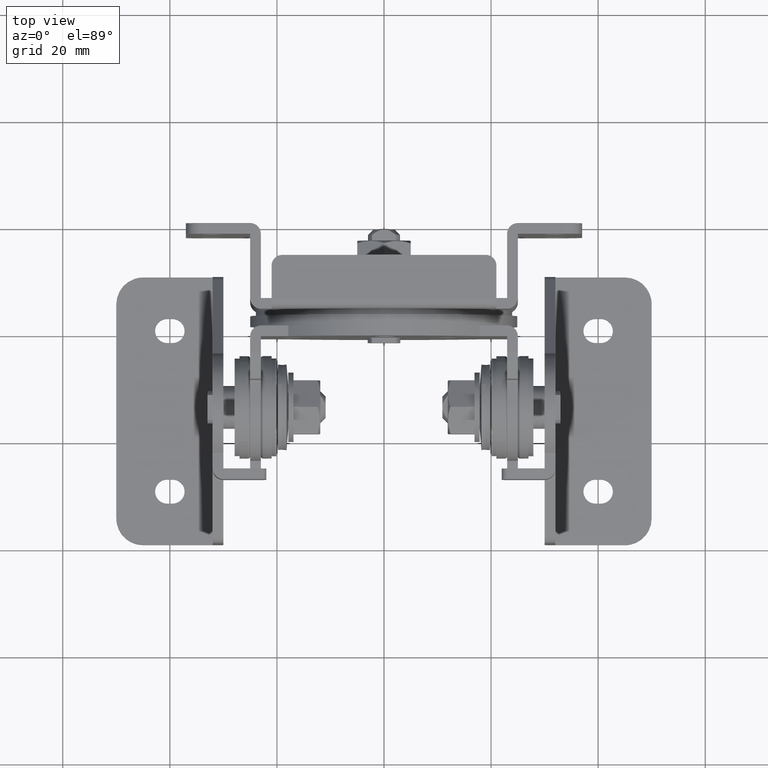
[diagram: clean part render]
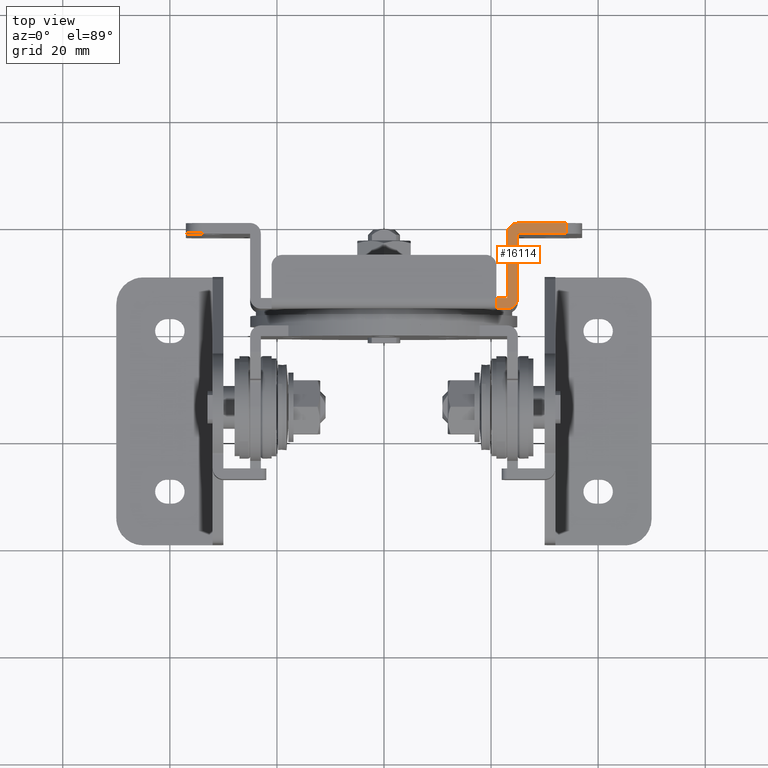
[diagram: same view with one face highlighted and labeled with its STEP entity id]
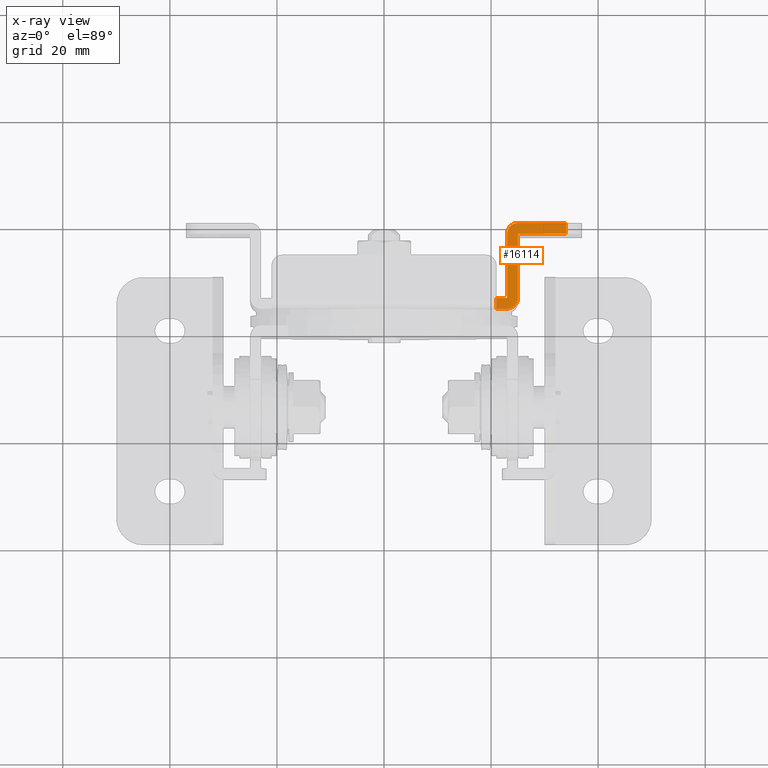
[diagram: x-ray of the same camera — body ghosted, the highlighted face saturated]
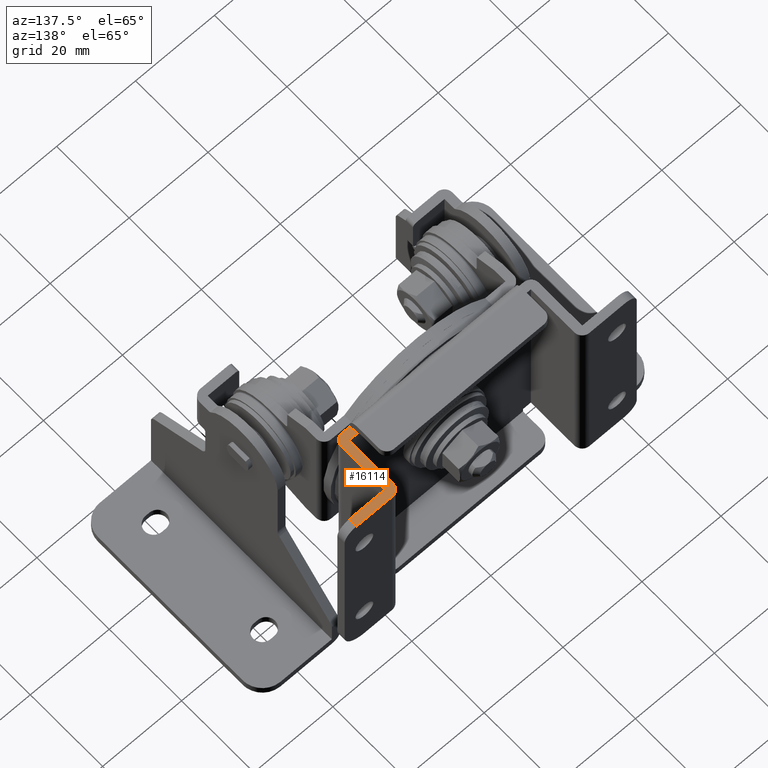
[diagram: same view with one face highlighted and labeled with its STEP entity id]
A machine part, top view. The second image highlights one B-rep face of the part: STEP entity #16114.
The next image is the same camera in x-ray: the body ghosted, the highlighted face saturated — about 0% of this face is hidden behind the body in this view.
A second angle (auxiliary view) of the same face is appended — the face is thin or edge-on in the first view.
In plain terms, the highlighted face is a freeform B-spline surface patch.
Its self-contained STEP definition (entity closure, byte-faithful):
#15058=CARTESIAN_POINT('',(21.0,-16.0,25.0));
#15059=VERTEX_POINT('',#15058);
#15065=CARTESIAN_POINT('',(21.0,-14.0,24.999999999999350));
#15066=VERTEX_POINT('',#15065);
#15067=CARTESIAN_POINT('',(21.0,-14.0,24.999999999999350));
#15068=CARTESIAN_POINT('',(21.0,-16.0,25.0));
#15069=QUASI_UNIFORM_CURVE('',1,(#15067,#15068),.UNSPECIFIED.,.F.,.U.);
#15070=EDGE_CURVE('',#15066,#15059,#15069,.T.);
#15293=CARTESIAN_POINT('',(23.0,-16.0,25.0));
#15294=VERTEX_POINT('',#15293);
#15295=CARTESIAN_POINT('',(25.0,-14.0,25.0));
#15296=VERTEX_POINT('',#15295);
#15297=CARTESIAN_POINT('',(23.0,-16.0,25.0));
#15298=CARTESIAN_POINT('',(25.0,-15.999999999999998,25.0));
#15299=CARTESIAN_POINT('',(25.0,-14.0,25.0));
#15307=(BOUNDED_CURVE()B_SPLINE_CURVE(2,(#15297,#15298,#15299),.UNSPECIFIED.,.F.,.U.)CURVE()GEOMETRIC_REPRESENTATION_ITEM()QUASI_UNIFORM_CURVE()RATIONAL_B_SPLINE_CURVE((1.0,0.707106781186548,1.0))REPRESENTATION_ITEM(''));
#15308=EDGE_CURVE('',#15294,#15296,#15307,.T.);
#15354=CARTESIAN_POINT('',(25.0,5.684342E-014,25.0));
#15355=VERTEX_POINT('',#15354);
#15356=CARTESIAN_POINT('',(23.0,-1.999999999999940,25.0));
#15357=VERTEX_POINT('',#15356);
#15358=CARTESIAN_POINT('',(25.0,5.984796E-014,25.0));
#15359=CARTESIAN_POINT('',(22.999999999999993,5.984796E-014,25.0));
#15360=CARTESIAN_POINT('',(23.0,-1.999999999999940,25.0));
#15368=(BOUNDED_CURVE()B_SPLINE_CURVE(2,(#15358,#15359,#15360),.UNSPECIFIED.,.F.,.U.)CURVE()GEOMETRIC_REPRESENTATION_ITEM()QUASI_UNIFORM_CURVE()RATIONAL_B_SPLINE_CURVE((1.0,0.707106781186548,1.0))REPRESENTATION_ITEM(''));
#15369=EDGE_CURVE('',#15355,#15357,#15368,.T.);
#15854=CARTESIAN_POINT('',(34.0,5.684342E-014,25.0));
#15855=VERTEX_POINT('',#15854);
#15871=CARTESIAN_POINT('',(34.0,-2.0,25.0));
#15872=VERTEX_POINT('',#15871);
#15873=CARTESIAN_POINT('',(34.0,-2.0,25.0));
#15874=CARTESIAN_POINT('',(34.0,5.684342E-014,25.0));
#15875=QUASI_UNIFORM_CURVE('',1,(#15873,#15874),.UNSPECIFIED.,.F.,.U.);
#15876=EDGE_CURVE('',#15872,#15855,#15875,.T.);
#16069=CARTESIAN_POINT('',(20.350650025196519,-16.799199968988901,25.0));
#16070=CARTESIAN_POINT('',(34.649350323490651,-16.799199968988901,25.0));
#16071=CARTESIAN_POINT('',(20.350650025196519,0.799200398142396,25.0));
#16072=CARTESIAN_POINT('',(34.649350323490651,0.799200398142396,25.0));
#16073=B_SPLINE_SURFACE_WITH_KNOTS('',1,1,((#16069,#16071),(#16070,#16072)),.UNSPECIFIED.,.F.,.F.,.U.,(2,2),(2,2),(0.0,14.298700298294129),(0.0,17.598400367131291),.UNSPECIFIED.);
#16074=CARTESIAN_POINT('',(23.0,-14.0,25.0));
#16075=VERTEX_POINT('',#16074);
#16076=CARTESIAN_POINT('',(21.0,-14.0,24.999999999999350));
#16077=CARTESIAN_POINT('',(23.0,-14.0,25.0));
#16078=QUASI_UNIFORM_CURVE('',1,(#16076,#16077),.UNSPECIFIED.,.F.,.U.);
#16079=EDGE_CURVE('',#15066,#16075,#16078,.T.);
#16080=ORIENTED_EDGE('',*,*,#16079,.F.);
#16081=ORIENTED_EDGE('',*,*,#15070,.T.);
#16082=CARTESIAN_POINT('',(23.0,-16.0,25.0));
#16083=CARTESIAN_POINT('',(21.0,-16.0,25.0));
#16084=QUASI_UNIFORM_CURVE('',1,(#16082,#16083),.UNSPECIFIED.,.F.,.U.);
#16085=EDGE_CURVE('',#15294,#15059,#16084,.T.);
#16086=ORIENTED_EDGE('',*,*,#16085,.F.);
#16087=ORIENTED_EDGE('',*,*,#15308,.T.);
#16088=CARTESIAN_POINT('',(25.0,-2.0,25.0));
#16089=VERTEX_POINT('',#16088);
#16090=CARTESIAN_POINT('',(25.0,-2.0,25.0));
#16091=CARTESIAN_POINT('',(25.0,-14.0,25.0));
#16092=QUASI_UNIFORM_CURVE('',1,(#16090,#16091),.UNSPECIFIED.,.F.,.U.);
#16093=EDGE_CURVE('',#16089,#15296,#16092,.T.);
#16094=ORIENTED_EDGE('',*,*,#16093,.F.);
#16095=CARTESIAN_POINT('',(34.0,-2.0,25.0));
#16096=CARTESIAN_POINT('',(25.0,-2.0,25.0));
#16097=QUASI_UNIFORM_CURVE('',1,(#16095,#16096),.UNSPECIFIED.,.F.,.U.);
#16098=EDGE_CURVE('',#15872,#16089,#16097,.T.);
#16099=ORIENTED_EDGE('',*,*,#16098,.F.);
#16100=ORIENTED_EDGE('',*,*,#15876,.T.);
#16101=CARTESIAN_POINT('',(25.0,5.684342E-014,25.0));
#16102=CARTESIAN_POINT('',(34.0,5.684342E-014,25.0));
#16103=QUASI_UNIFORM_CURVE('',1,(#16101,#16102),.UNSPECIFIED.,.F.,.U.);
#16104=EDGE_CURVE('',#15355,#15855,#16103,.T.);
#16105=ORIENTED_EDGE('',*,*,#16104,.F.);
#16106=ORIENTED_EDGE('',*,*,#15369,.T.);
#16107=CARTESIAN_POINT('',(23.0,-14.0,25.0));
#16108=CARTESIAN_POINT('',(23.0,-1.999999999999940,25.0));
#16109=QUASI_UNIFORM_CURVE('',1,(#16107,#16108),.UNSPECIFIED.,.F.,.U.);
#16110=EDGE_CURVE('',#16075,#15357,#16109,.T.);
#16111=ORIENTED_EDGE('',*,*,#16110,.F.);
#16112=EDGE_LOOP('',(#16080,#16081,#16086,#16087,#16094,#16099,#16100,#16105,#16106,#16111));
#16113=FACE_OUTER_BOUND('',#16112,.T.);
#16114=ADVANCED_FACE('',(#16113),#16073,.T.);